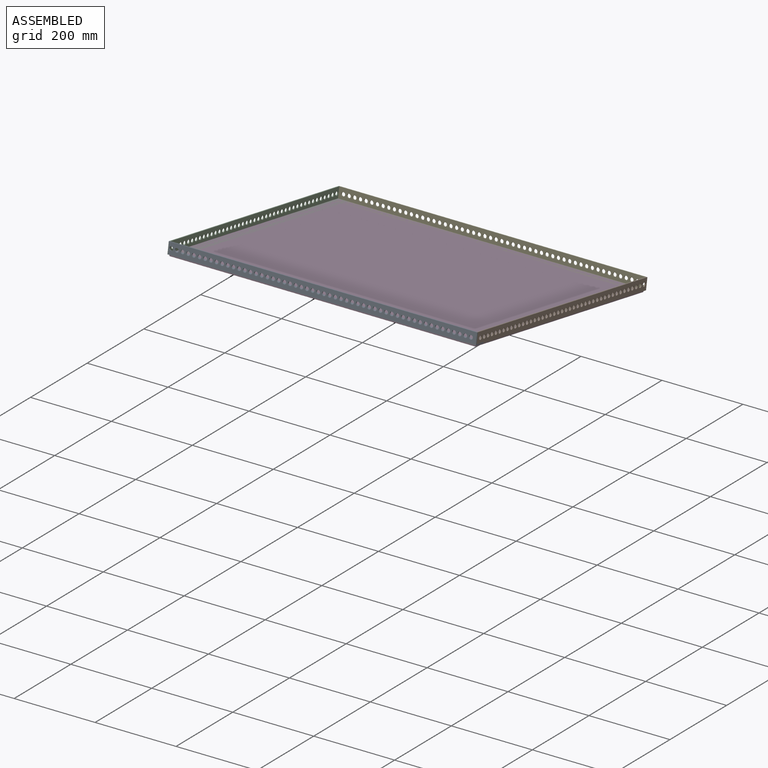
[diagram: assembled view]
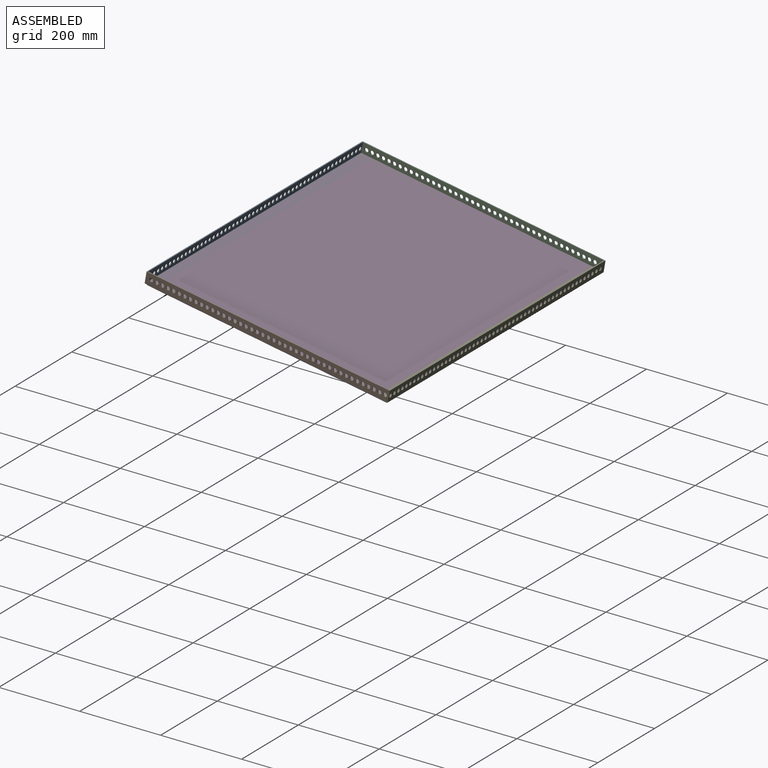
[diagram: assembled view, second angle]
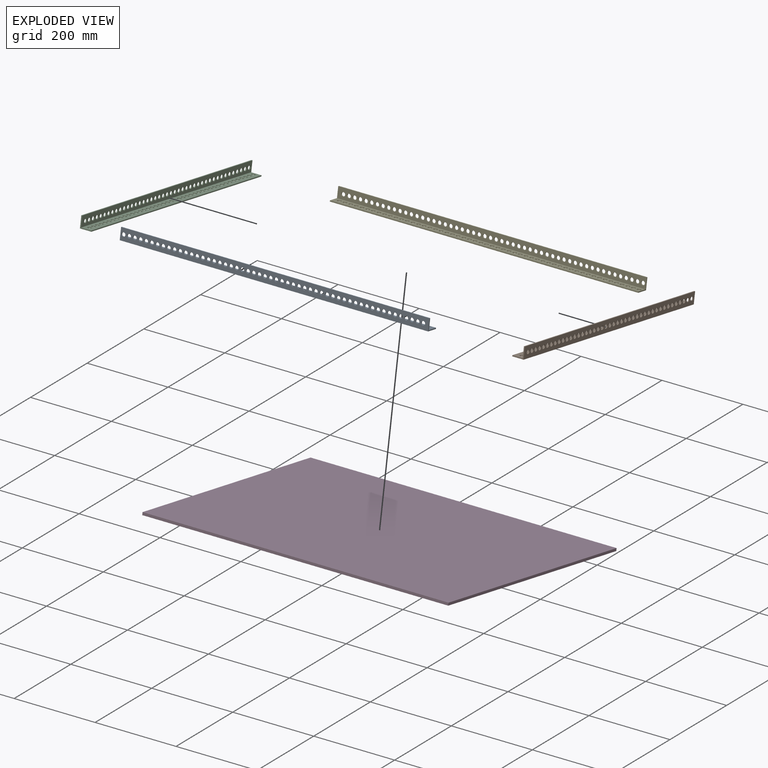
[diagram: exploded view]
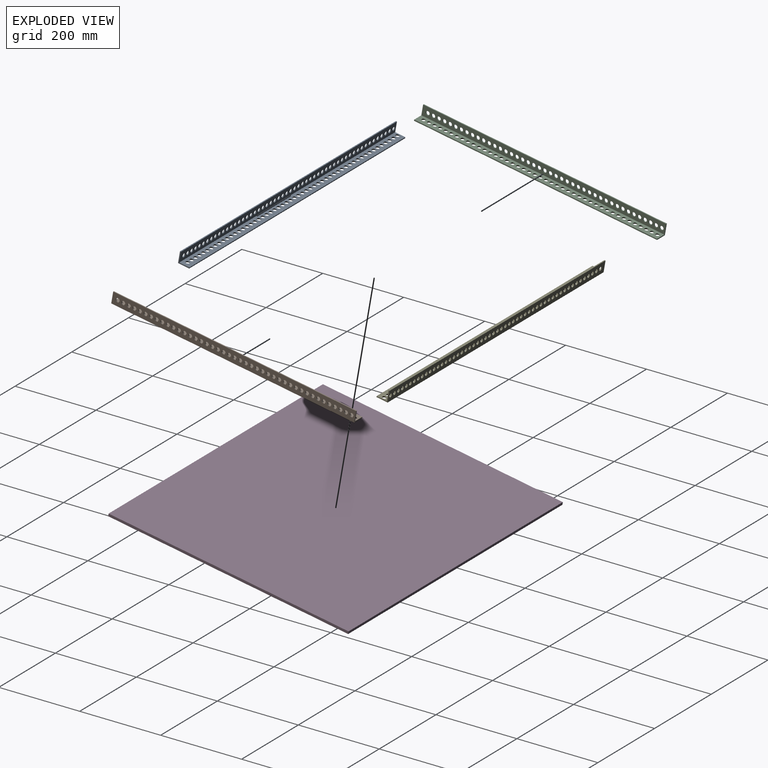
[diagram: exploded view, second angle]
ASSEMBLY  parts=5 mates=4
PART A: 116 faces, bbox 27.9x27.9x762 mm
  f0: plane 762x25.4mm, normal (0,1,0), area 15608.9mm2, adj f1,f3,f4,f5,f6,f7,f8,f9
  f1: plane 762x2.54mm, normal (-1,0,0), area 1935.5mm2, adj f0,f2,f3,f4
  f2: plane 762x27.94mm, normal (0,-1,0), area 17544.4mm2, adj f1,f3,f4,f5,f6,f7,f8,f9
  f3: plane 27.94x27.94mm, normal (0,0,1), area 135.5mm2, adj f0,f1,f2,f59,f60,f61
  f4: plane 27.94x27.94mm, normal (0,0,-1), area 135.5mm2, adj f0,f1,f2,f59,f60,f61
  f5: cylinder r=4.7mm len=9.4mm, axis (0,-1,0), area 75mm2, adj f0,f2
  f6: cylinder r=4.7mm len=9.4mm, axis (0,-1,0), area 75mm2, adj f0,f2
  f7: cylinder r=4.7mm len=9.4mm, axis (0,-1,0), area 75mm2, adj f0,f2
  f8: cylinder r=4.7mm len=9.4mm, axis (0,-1,0), area 75mm2, adj f0,f2
  f9: cylinder r=4.7mm len=9.4mm, axis (0,-1,0), area 75mm2, adj f0,f2
  f10: cylinder r=4.7mm len=9.4mm, axis (0,-1,0), area 75mm2, adj f0,f2
  f11: cylinder r=4.7mm len=9.4mm, axis (0,-1,0), area 75mm2, adj f0,f2
  f12: cylinder r=4.7mm len=9.4mm, axis (0,-1,0), area 75mm2, adj f0,f2
  f13: cylinder r=4.7mm len=9.4mm, axis (0,-1,0), area 75mm2, adj f0,f2
  f14: cylinder r=4.7mm len=9.4mm, axis (0,-1,0), area 75mm2, adj f0,f2
  f15: cylinder r=4.7mm len=9.4mm, axis (0,-1,0), area 75mm2, adj f0,f2
  f16: cylinder r=4.7mm len=9.4mm, axis (0,-1,0), area 75mm2, adj f0,f2
  f17: cylinder r=4.7mm len=9.4mm, axis (0,-1,0), area 75mm2, adj f0,f2
  f18: cylinder r=4.7mm len=9.4mm, axis (0,-1,0), area 75mm2, adj f0,f2
  f19: cylinder r=4.7mm len=9.4mm, axis (0,-1,0), area 75mm2, adj f0,f2
  f20: cylinder r=4.7mm len=9.4mm, axis (0,-1,0), area 75mm2, adj f0,f2
  f21: cylinder r=4.7mm len=9.4mm, axis (0,-1,0), area 75mm2, adj f0,f2
  f22: cylinder r=4.7mm len=9.4mm, axis (0,-1,0), area 75mm2, adj f0,f2
  f23: cylinder r=4.7mm len=9.4mm, axis (0,-1,0), area 75mm2, adj f0,f2
  f24: cylinder r=4.7mm len=9.4mm, axis (0,-1,0), area 75mm2, adj f0,f2
  f25: cylinder r=4.7mm len=9.4mm, axis (0,-1,0), area 75mm2, adj f0,f2
  f26: cylinder r=4.7mm len=9.4mm, axis (0,-1,0), area 75mm2, adj f0,f2
  f27: cylinder r=4.7mm len=9.4mm, axis (0,-1,0), area 75mm2, adj f0,f2
  f28: cylinder r=4.7mm len=9.4mm, axis (0,-1,0), area 75mm2, adj f0,f2
  f29: cylinder r=4.7mm len=9.4mm, axis (0,-1,0), area 75mm2, adj f0,f2
  f30: cylinder r=4.7mm len=9.4mm, axis (0,-1,0), area 75mm2, adj f0,f2
  f31: cylinder r=4.7mm len=9.4mm, axis (0,-1,0), area 75mm2, adj f0,f2
  f32: cylinder r=4.7mm len=9.4mm, axis (0,-1,0), area 75mm2, adj f0,f2
  f33: cylinder r=4.7mm len=9.4mm, axis (0,-1,0), area 75mm2, adj f0,f2
  f34: cylinder r=4.7mm len=9.4mm, axis (0,-1,0), area 75mm2, adj f0,f2
  f35: cylinder r=4.7mm len=9.4mm, axis (0,-1,0), area 75mm2, adj f0,f2
  f36: cylinder r=4.7mm len=9.4mm, axis (0,-1,0), area 75mm2, adj f0,f2
  f37: cylinder r=4.7mm len=9.4mm, axis (0,-1,0), area 75mm2, adj f0,f2
  f38: cylinder r=4.7mm len=9.4mm, axis (0,-1,0), area 75mm2, adj f0,f2
  f39: cylinder r=4.7mm len=9.4mm, axis (0,-1,0), area 75mm2, adj f0,f2
  f40: cylinder r=4.7mm len=9.4mm, axis (0,-1,0), area 75mm2, adj f0,f2
  f41: cylinder r=4.7mm len=9.4mm, axis (0,-1,0), area 75mm2, adj f0,f2
  f42: cylinder r=4.7mm len=9.4mm, axis (0,-1,0), area 75mm2, adj f0,f2
  f43: cylinder r=4.7mm len=9.4mm, axis (0,-1,0), area 75mm2, adj f0,f2
  f44: cylinder r=4.7mm len=9.4mm, axis (0,-1,0), area 75mm2, adj f0,f2
  f45: cylinder r=4.7mm len=9.4mm, axis (0,-1,0), area 75mm2, adj f0,f2
  f46: cylinder r=4.7mm len=9.4mm, axis (0,-1,0), area 75mm2, adj f0,f2
  f47: cylinder r=4.7mm len=9.4mm, axis (0,-1,0), area 75mm2, adj f0,f2
  f48: cylinder r=4.7mm len=9.4mm, axis (0,-1,0), area 75mm2, adj f0,f2
  f49: cylinder r=4.7mm len=9.4mm, axis (0,-1,0), area 75mm2, adj f0,f2
  f50: cylinder r=4.7mm len=9.4mm, axis (0,-1,0), area 75mm2, adj f0,f2
  f51: cylinder r=4.7mm len=9.4mm, axis (0,-1,0), area 75mm2, adj f0,f2
  f52: cylinder r=4.7mm len=9.4mm, axis (0,-1,0), area 75mm2, adj f0,f2
  f53: cylinder r=4.7mm len=9.4mm, axis (0,-1,0), area 75mm2, adj f0,f2
  f54: cylinder r=4.7mm len=9.4mm, axis (0,-1,0), area 75mm2, adj f0,f2
  f55: cylinder r=4.7mm len=9.4mm, axis (0,-1,0), area 75mm2, adj f0,f2
  f56: cylinder r=4.7mm len=9.4mm, axis (0,-1,0), area 75mm2, adj f0,f2
  f57: cylinder r=4.7mm len=9.4mm, axis (0,-1,0), area 75mm2, adj f0,f2
  f58: cylinder r=4.7mm len=9.4mm, axis (0,-1,0), area 75mm2, adj f0,f2
  f59: plane 762x25.4mm, normal (-1,0,0), area 15608.9mm2, adj f0,f3,f4,f60,f62,f63,f64,f65
  f60: plane 762x2.54mm, normal (0,1,0), area 1935.5mm2, adj f3,f4,f59,f61
  f61: plane 762x27.94mm, normal (1,0,0), area 17544.4mm2, adj f2,f3,f4,f60,f62,f63,f64,f65
  f62: cylinder r=4.7mm len=9.4mm, axis (1,0,0), area 75mm2, adj f59,f61
  f63: cylinder r=4.7mm len=9.4mm, axis (1,0,0), area 75mm2, adj f59,f61
  f64: cylinder r=4.7mm len=9.4mm, axis (1,0,0), area 75mm2, adj f59,f61
  f65: cylinder r=4.7mm len=9.4mm, axis (1,0,0), area 75mm2, adj f59,f61
  f66: cylinder r=4.7mm len=9.4mm, axis (1,0,0), area 75mm2, adj f59,f61
  f67: cylinder r=4.7mm len=9.4mm, axis (1,0,0), area 75mm2, adj f59,f61
  f68: cylinder r=4.7mm len=9.4mm, axis (1,0,0), area 75mm2, adj f59,f61
  f69: cylinder r=4.7mm len=9.4mm, axis (1,0,0), area 75mm2, adj f59,f61
  f70: cylinder r=4.7mm len=9.4mm, axis (1,0,0), area 75mm2, adj f59,f61
  f71: cylinder r=4.7mm len=9.4mm, axis (1,0,0), area 75mm2, adj f59,f61
  f72: cylinder r=4.7mm len=9.4mm, axis (1,0,0), area 75mm2, adj f59,f61
  f73: cylinder r=4.7mm len=9.4mm, axis (1,0,0), area 75mm2, adj f59,f61
  f74: cylinder r=4.7mm len=9.4mm, axis (1,0,0), area 75mm2, adj f59,f61
  f75: cylinder r=4.7mm len=9.4mm, axis (1,0,0), area 75mm2, adj f59,f61
  f76: cylinder r=4.7mm len=9.4mm, axis (1,0,0), area 75mm2, adj f59,f61
  f77: cylinder r=4.7mm len=9.4mm, axis (1,0,0), area 75mm2, adj f59,f61
  f78: cylinder r=4.7mm len=9.4mm, axis (1,0,0), area 75mm2, adj f59,f61
  f79: cylinder r=4.7mm len=9.4mm, axis (1,0,0), area 75mm2, adj f59,f61
  f80: cylinder r=4.7mm len=9.4mm, axis (1,0,0), area 75mm2, adj f59,f61
  f81: cylinder r=4.7mm len=9.4mm, axis (1,0,0), area 75mm2, adj f59,f61
  f82: cylinder r=4.7mm len=9.4mm, axis (1,0,0), area 75mm2, adj f59,f61
  f83: cylinder r=4.7mm len=9.4mm, axis (1,0,0), area 75mm2, adj f59,f61
  f84: cylinder r=4.7mm len=9.4mm, axis (1,0,0), area 75mm2, adj f59,f61
  f85: cylinder r=4.7mm len=9.4mm, axis (1,0,0), area 75mm2, adj f59,f61
  f86: cylinder r=4.7mm len=9.4mm, axis (1,0,0), area 75mm2, adj f59,f61
  f87: cylinder r=4.7mm len=9.4mm, axis (1,0,0), area 75mm2, adj f59,f61
  f88: cylinder r=4.7mm len=9.4mm, axis (1,0,0), area 75mm2, adj f59,f61
  f89: cylinder r=4.7mm len=9.4mm, axis (1,0,0), area 75mm2, adj f59,f61
  f90: cylinder r=4.7mm len=9.4mm, axis (1,0,0), area 75mm2, adj f59,f61
  f91: cylinder r=4.7mm len=9.4mm, axis (1,0,0), area 75mm2, adj f59,f61
  f92: cylinder r=4.7mm len=9.4mm, axis (1,0,0), area 75mm2, adj f59,f61
  f93: cylinder r=4.7mm len=9.4mm, axis (1,0,0), area 75mm2, adj f59,f61
  f94: cylinder r=4.7mm len=9.4mm, axis (1,0,0), area 75mm2, adj f59,f61
  f95: cylinder r=4.7mm len=9.4mm, axis (1,0,0), area 75mm2, adj f59,f61
  f96: cylinder r=4.7mm len=9.4mm, axis (1,0,0), area 75mm2, adj f59,f61
  f97: cylinder r=4.7mm len=9.4mm, axis (1,0,0), area 75mm2, adj f59,f61
  f98: cylinder r=4.7mm len=9.4mm, axis (1,0,0), area 75mm2, adj f59,f61
  f99: cylinder r=4.7mm len=9.4mm, axis (1,0,0), area 75mm2, adj f59,f61
  f100: cylinder r=4.7mm len=9.4mm, axis (1,0,0), area 75mm2, adj f59,f61
  f101: cylinder r=4.7mm len=9.4mm, axis (1,0,0), area 75mm2, adj f59,f61
  f102: cylinder r=4.7mm len=9.4mm, axis (1,0,0), area 75mm2, adj f59,f61
  f103: cylinder r=4.7mm len=9.4mm, axis (1,0,0), area 75mm2, adj f59,f61
  f104: cylinder r=4.7mm len=9.4mm, axis (1,0,0), area 75mm2, adj f59,f61
  f105: cylinder r=4.7mm len=9.4mm, axis (1,0,0), area 75mm2, adj f59,f61
  f106: cylinder r=4.7mm len=9.4mm, axis (1,0,0), area 75mm2, adj f59,f61
  f107: cylinder r=4.7mm len=9.4mm, axis (1,0,0), area 75mm2, adj f59,f61
  f108: cylinder r=4.7mm len=9.4mm, axis (1,0,0), area 75mm2, adj f59,f61
  f109: cylinder r=4.7mm len=9.4mm, axis (1,0,0), area 75mm2, adj f59,f61
  f110: cylinder r=4.7mm len=9.4mm, axis (1,0,0), area 75mm2, adj f59,f61
  f111: cylinder r=4.7mm len=9.4mm, axis (1,0,0), area 75mm2, adj f59,f61
  f112: cylinder r=4.7mm len=9.4mm, axis (1,0,0), area 75mm2, adj f59,f61
  f113: cylinder r=4.7mm len=9.4mm, axis (1,0,0), area 75mm2, adj f59,f61
  f114: cylinder r=4.7mm len=9.4mm, axis (1,0,0), area 75mm2, adj f59,f61
  f115: cylinder r=4.7mm len=9.4mm, axis (1,0,0), area 75mm2, adj f59,f61
PART B: 94 faces, bbox 27.9x27.9x609.6 mm
  f0: plane 609.6x25.4mm, normal (0,1,0), area 12501mm2, adj f1,f3,f4,f5,f6,f7,f8,f9
  f1: plane 609.6x2.54mm, normal (-1,0,0), area 1548.4mm2, adj f0,f2,f3,f4
  f2: plane 609.6x27.94mm, normal (0,-1,0), area 14049.4mm2, adj f1,f3,f4,f5,f6,f7,f8,f9
  f3: plane 27.94x27.94mm, normal (0,0,1), area 135.5mm2, adj f0,f1,f2,f48,f49,f50
  f4: plane 27.94x27.94mm, normal (0,0,-1), area 135.5mm2, adj f0,f1,f2,f48,f49,f50
  f5: cylinder r=4.7mm len=9.4mm, axis (0,-1,0), area 75mm2, adj f0,f2
  f6: cylinder r=4.7mm len=9.4mm, axis (0,-1,0), area 75mm2, adj f0,f2
  f7: cylinder r=4.7mm len=9.4mm, axis (0,-1,0), area 75mm2, adj f0,f2
  f8: cylinder r=4.7mm len=9.4mm, axis (0,-1,0), area 75mm2, adj f0,f2
  f9: cylinder r=4.7mm len=9.4mm, axis (0,-1,0), area 75mm2, adj f0,f2
  f10: cylinder r=4.7mm len=9.4mm, axis (0,-1,0), area 75mm2, adj f0,f2
  f11: cylinder r=4.7mm len=9.4mm, axis (0,-1,0), area 75mm2, adj f0,f2
  f12: cylinder r=4.7mm len=9.4mm, axis (0,-1,0), area 75mm2, adj f0,f2
  f13: cylinder r=4.7mm len=9.4mm, axis (0,-1,0), area 75mm2, adj f0,f2
  f14: cylinder r=4.7mm len=9.4mm, axis (0,-1,0), area 75mm2, adj f0,f2
  f15: cylinder r=4.7mm len=9.4mm, axis (0,-1,0), area 75mm2, adj f0,f2
  f16: cylinder r=4.7mm len=9.4mm, axis (0,-1,0), area 75mm2, adj f0,f2
  f17: cylinder r=4.7mm len=9.4mm, axis (0,-1,0), area 75mm2, adj f0,f2
  f18: cylinder r=4.7mm len=9.4mm, axis (0,-1,0), area 75mm2, adj f0,f2
  f19: cylinder r=4.7mm len=9.4mm, axis (0,-1,0), area 75mm2, adj f0,f2
  f20: cylinder r=4.7mm len=9.4mm, axis (0,-1,0), area 75mm2, adj f0,f2
  f21: cylinder r=4.7mm len=9.4mm, axis (0,-1,0), area 75mm2, adj f0,f2
  f22: cylinder r=4.7mm len=9.4mm, axis (0,-1,0), area 75mm2, adj f0,f2
  f23: cylinder r=4.7mm len=9.4mm, axis (0,-1,0), area 75mm2, adj f0,f2
  f24: cylinder r=4.7mm len=9.4mm, axis (0,-1,0), area 75mm2, adj f0,f2
  f25: cylinder r=4.7mm len=9.4mm, axis (0,-1,0), area 75mm2, adj f0,f2
  f26: cylinder r=4.7mm len=9.4mm, axis (0,-1,0), area 75mm2, adj f0,f2
  f27: cylinder r=4.7mm len=9.4mm, axis (0,-1,0), area 75mm2, adj f0,f2
  f28: cylinder r=4.7mm len=9.4mm, axis (0,-1,0), area 75mm2, adj f0,f2
  f29: cylinder r=4.7mm len=9.4mm, axis (0,-1,0), area 75mm2, adj f0,f2
  f30: cylinder r=4.7mm len=9.4mm, axis (0,-1,0), area 75mm2, adj f0,f2
  f31: cylinder r=4.7mm len=9.4mm, axis (0,-1,0), area 75mm2, adj f0,f2
  f32: cylinder r=4.7mm len=9.4mm, axis (0,-1,0), area 75mm2, adj f0,f2
  f33: cylinder r=4.7mm len=9.4mm, axis (0,-1,0), area 75mm2, adj f0,f2
  f34: cylinder r=4.7mm len=9.4mm, axis (0,-1,0), area 75mm2, adj f0,f2
  f35: cylinder r=4.7mm len=9.4mm, axis (0,-1,0), area 75mm2, adj f0,f2
  f36: cylinder r=4.7mm len=9.4mm, axis (0,-1,0), area 75mm2, adj f0,f2
  f37: cylinder r=4.7mm len=9.4mm, axis (0,-1,0), area 75mm2, adj f0,f2
  f38: cylinder r=4.7mm len=9.4mm, axis (0,-1,0), area 75mm2, adj f0,f2
  f39: cylinder r=4.7mm len=9.4mm, axis (0,-1,0), area 75mm2, adj f0,f2
  f40: cylinder r=4.7mm len=9.4mm, axis (0,-1,0), area 75mm2, adj f0,f2
  f41: cylinder r=4.7mm len=9.4mm, axis (0,-1,0), area 75mm2, adj f0,f2
  f42: cylinder r=4.7mm len=9.4mm, axis (0,-1,0), area 75mm2, adj f0,f2
  f43: cylinder r=4.7mm len=9.4mm, axis (0,-1,0), area 75mm2, adj f0,f2
  f44: cylinder r=4.7mm len=9.4mm, axis (0,-1,0), area 75mm2, adj f0,f2
  f45: cylinder r=4.7mm len=9.4mm, axis (0,-1,0), area 75mm2, adj f0,f2
  f46: cylinder r=4.7mm len=9.4mm, axis (0,-1,0), area 75mm2, adj f0,f2
  f47: cylinder r=4.7mm len=9.4mm, axis (0,-1,0), area 75mm2, adj f0,f2
  f48: plane 609.6x25.4mm, normal (-1,0,0), area 12501mm2, adj f0,f3,f4,f49,f51,f52,f53,f54
  f49: plane 609.6x2.54mm, normal (0,1,0), area 1548.4mm2, adj f3,f4,f48,f50
  f50: plane 609.6x27.94mm, normal (1,0,0), area 14049.4mm2, adj f2,f3,f4,f49,f51,f52,f53,f54
  f51: cylinder r=4.7mm len=9.4mm, axis (1,0,0), area 75mm2, adj f48,f50
  f52: cylinder r=4.7mm len=9.4mm, axis (1,0,0), area 75mm2, adj f48,f50
  f53: cylinder r=4.7mm len=9.4mm, axis (1,0,0), area 75mm2, adj f48,f50
  f54: cylinder r=4.7mm len=9.4mm, axis (1,0,0), area 75mm2, adj f48,f50
  f55: cylinder r=4.7mm len=9.4mm, axis (1,0,0), area 75mm2, adj f48,f50
  f56: cylinder r=4.7mm len=9.4mm, axis (1,0,0), area 75mm2, adj f48,f50
  f57: cylinder r=4.7mm len=9.4mm, axis (1,0,0), area 75mm2, adj f48,f50
  f58: cylinder r=4.7mm len=9.4mm, axis (1,0,0), area 75mm2, adj f48,f50
  f59: cylinder r=4.7mm len=9.4mm, axis (1,0,0), area 75mm2, adj f48,f50
  f60: cylinder r=4.7mm len=9.4mm, axis (1,0,0), area 75mm2, adj f48,f50
  f61: cylinder r=4.7mm len=9.4mm, axis (1,0,0), area 75mm2, adj f48,f50
  f62: cylinder r=4.7mm len=9.4mm, axis (1,0,0), area 75mm2, adj f48,f50
  f63: cylinder r=4.7mm len=9.4mm, axis (1,0,0), area 75mm2, adj f48,f50
  f64: cylinder r=4.7mm len=9.4mm, axis (1,0,0), area 75mm2, adj f48,f50
  f65: cylinder r=4.7mm len=9.4mm, axis (1,0,0), area 75mm2, adj f48,f50
  f66: cylinder r=4.7mm len=9.4mm, axis (1,0,0), area 75mm2, adj f48,f50
  f67: cylinder r=4.7mm len=9.4mm, axis (1,0,0), area 75mm2, adj f48,f50
  f68: cylinder r=4.7mm len=9.4mm, axis (1,0,0), area 75mm2, adj f48,f50
  f69: cylinder r=4.7mm len=9.4mm, axis (1,0,0), area 75mm2, adj f48,f50
  f70: cylinder r=4.7mm len=9.4mm, axis (1,0,0), area 75mm2, adj f48,f50
  f71: cylinder r=4.7mm len=9.4mm, axis (1,0,0), area 75mm2, adj f48,f50
  f72: cylinder r=4.7mm len=9.4mm, axis (1,0,0), area 75mm2, adj f48,f50
  f73: cylinder r=4.7mm len=9.4mm, axis (1,0,0), area 75mm2, adj f48,f50
  f74: cylinder r=4.7mm len=9.4mm, axis (1,0,0), area 75mm2, adj f48,f50
  f75: cylinder r=4.7mm len=9.4mm, axis (1,0,0), area 75mm2, adj f48,f50
  f76: cylinder r=4.7mm len=9.4mm, axis (1,0,0), area 75mm2, adj f48,f50
  f77: cylinder r=4.7mm len=9.4mm, axis (1,0,0), area 75mm2, adj f48,f50
  f78: cylinder r=4.7mm len=9.4mm, axis (1,0,0), area 75mm2, adj f48,f50
  f79: cylinder r=4.7mm len=9.4mm, axis (1,0,0), area 75mm2, adj f48,f50
  f80: cylinder r=4.7mm len=9.4mm, axis (1,0,0), area 75mm2, adj f48,f50
  f81: cylinder r=4.7mm len=9.4mm, axis (1,0,0), area 75mm2, adj f48,f50
  f82: cylinder r=4.7mm len=9.4mm, axis (1,0,0), area 75mm2, adj f48,f50
  f83: cylinder r=4.7mm len=9.4mm, axis (1,0,0), area 75mm2, adj f48,f50
  f84: cylinder r=4.7mm len=9.4mm, axis (1,0,0), area 75mm2, adj f48,f50
  f85: cylinder r=4.7mm len=9.4mm, axis (1,0,0), area 75mm2, adj f48,f50
  f86: cylinder r=4.7mm len=9.4mm, axis (1,0,0), area 75mm2, adj f48,f50
  f87: cylinder r=4.7mm len=9.4mm, axis (1,0,0), area 75mm2, adj f48,f50
  f88: cylinder r=4.7mm len=9.4mm, axis (1,0,0), area 75mm2, adj f48,f50
  f89: cylinder r=4.7mm len=9.4mm, axis (1,0,0), area 75mm2, adj f48,f50
  f90: cylinder r=4.7mm len=9.4mm, axis (1,0,0), area 75mm2, adj f48,f50
  f91: cylinder r=4.7mm len=9.4mm, axis (1,0,0), area 75mm2, adj f48,f50
  f92: cylinder r=4.7mm len=9.4mm, axis (1,0,0), area 75mm2, adj f48,f50
  f93: cylinder r=4.7mm len=9.4mm, axis (1,0,0), area 75mm2, adj f48,f50
PART C: same geometry as B
PART D: 6 faces, bbox 756x602x6.4 mm
  f0: plane 756x6.35mm, normal (0,1,0), area 4800.6mm2, adj f1,f3,f4,f5
  f1: plane 602x6.35mm, normal (-1,0,0), area 3822.7mm2, adj f0,f2,f4,f5
  f2: plane 756x6.35mm, normal (0,-1,0), area 4800.6mm2, adj f1,f3,f4,f5
  f3: plane 602x6.35mm, normal (1,0,0), area 3822.7mm2, adj f0,f2,f4,f5
  f4: plane 756x602mm, normal (0,0,1), area 455112mm2, adj f0,f1,f2,f3
  f5: plane 756x602mm, normal (0,0,-1), area 455112mm2, adj f0,f1,f2,f3
PART E: same geometry as A
PLACE A rot(axis=(-0.09,0.99,-0.09),90.4deg) t=(-147,-446.2,355.76)mm
PLACE B rot(axis=(1,0,0),80deg) t=(612.46,151.64,250.35)mm
PLACE C rot(axis=(0.54,0.54,-0.64),114.4deg) t=(-144.46,151.64,250.35)mm
PLACE D rot(axis=(-1,0,0),10deg) t=(233.54,-149.63,297.02)mm
PLACE E rot(axis=(0.71,-0.06,-0.71),172.9deg) t=(615,149.14,250.79)mm
MATE fastened C.f48 <-> D.f4  axis (0,0.17,0.98) through (-144.46,-148.53,303.27)mm
MATE fastened A.f3 <-> B.f50  axis (1,0,0) through (615,-449.14,353.7)mm
MATE fastened C.f2 <-> E.f3  axis (-1,0,0) through (-147,151.2,247.84)mm
MATE fastened B.f4 <-> E.f2  axis (0,0.98,-0.17) through (615,151.2,247.84)mm
